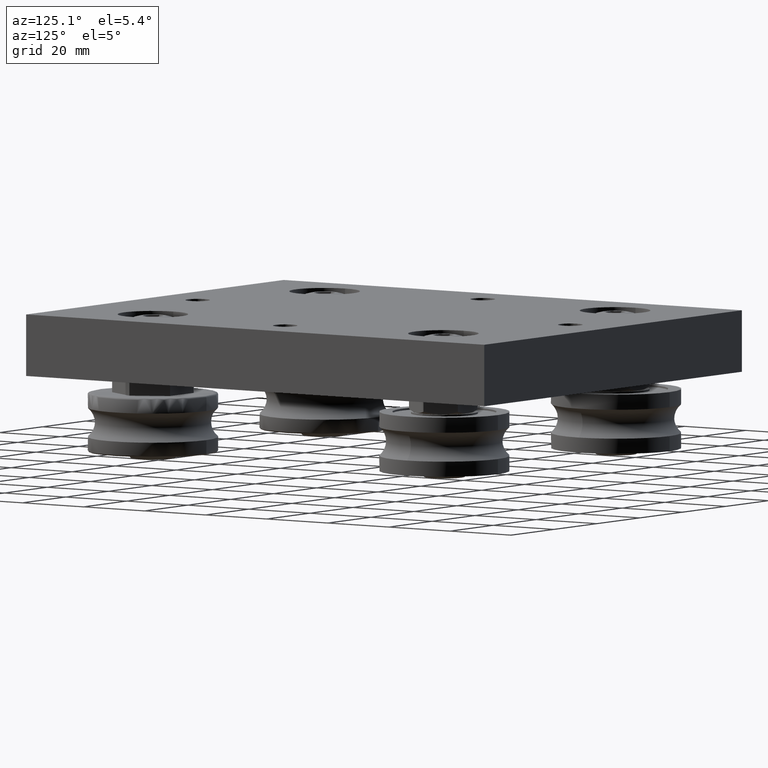
[diagram: clean part render]
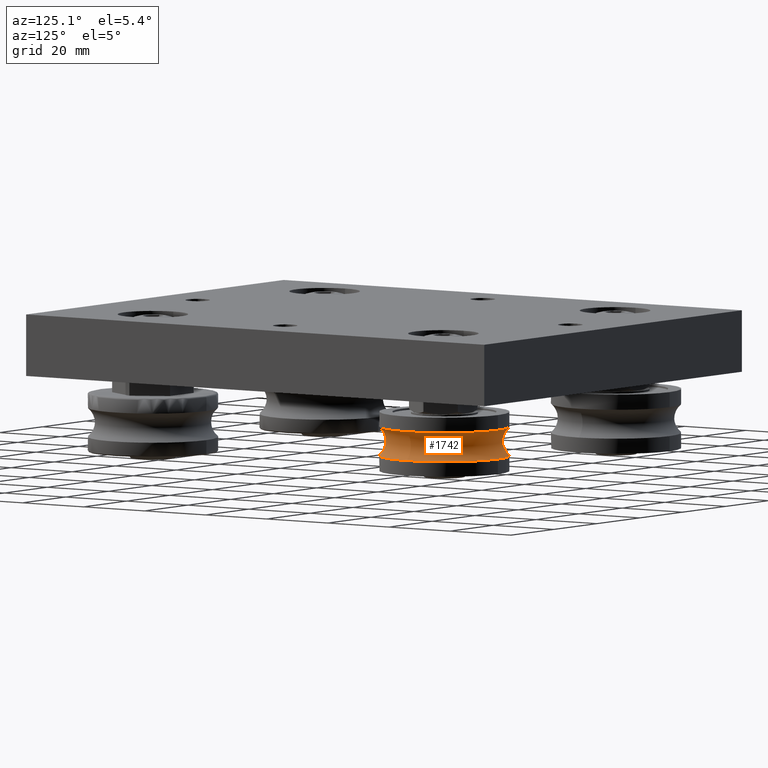
[diagram: same view with one face highlighted and labeled with its STEP entity id]
A machine part, auxiliary view. The second image highlights one B-rep face of the part: STEP entity #1742.
In plain terms, the highlighted toroidal blend (fillet) surface has major radius 20.65 mm and minor (blend) radius 5 mm.
Its self-contained STEP definition (entity closure, byte-faithful):
#103=TOROIDAL_SURFACE('',#1998,20.65,5.);
#280=FACE_OUTER_BOUND('',#417,.T.);
#417=EDGE_LOOP('',(#1326,#1327,#1328,#1329,#1330,#1331));
#741=CIRCLE('',#1996,17.5);
#742=CIRCLE('',#1997,17.5);
#743=CIRCLE('',#1999,5.);
#744=CIRCLE('',#2000,17.5);
#745=CIRCLE('',#2001,17.5);
#865=VERTEX_POINT('',#2892);
#866=VERTEX_POINT('',#2893);
#867=VERTEX_POINT('',#2898);
#868=VERTEX_POINT('',#2900);
#1031=EDGE_CURVE('',#865,#866,#741,.T.);
#1033=EDGE_CURVE('',#866,#865,#742,.T.);
#1034=EDGE_CURVE('',#866,#867,#743,.T.);
#1035=EDGE_CURVE('',#868,#867,#744,.T.);
#1036=EDGE_CURVE('',#867,#868,#745,.T.);
#1326=ORIENTED_EDGE('',*,*,#1031,.T.);
#1327=ORIENTED_EDGE('',*,*,#1034,.T.);
#1328=ORIENTED_EDGE('',*,*,#1035,.F.);
#1329=ORIENTED_EDGE('',*,*,#1036,.F.);
#1330=ORIENTED_EDGE('',*,*,#1034,.F.);
#1331=ORIENTED_EDGE('',*,*,#1033,.T.);
#1742=ADVANCED_FACE('',(#280),#103,.F.);
#1996=AXIS2_PLACEMENT_3D('',#2894,#2329,#2330);
#1997=AXIS2_PLACEMENT_3D('',#2896,#2332,#2333);
#1998=AXIS2_PLACEMENT_3D('',#2897,#2334,#2335);
#1999=AXIS2_PLACEMENT_3D('',#2899,#2336,#2337);
#2000=AXIS2_PLACEMENT_3D('',#2901,#2338,#2339);
#2001=AXIS2_PLACEMENT_3D('',#2902,#2340,#2341);
#2329=DIRECTION('center_axis',(1.,0.,0.));
#2330=DIRECTION('ref_axis',(0.,1.,0.));
#2332=DIRECTION('center_axis',(1.,0.,0.));
#2333=DIRECTION('ref_axis',(0.,1.,0.));
#2334=DIRECTION('center_axis',(1.,0.,0.));
#2335=DIRECTION('ref_axis',(0.,0.,-1.));
#2336=DIRECTION('center_axis',(0.,-1.,-1.22464679914735E-16));
#2337=DIRECTION('ref_axis',(0.,-1.22464679914735E-16,1.));
#2338=DIRECTION('center_axis',(1.,0.,0.));
#2339=DIRECTION('ref_axis',(0.,1.,0.));
#2340=DIRECTION('center_axis',(1.,0.,0.));
#2341=DIRECTION('ref_axis',(0.,1.,0.));
#2892=CARTESIAN_POINT('',(-3.88297566307078,-17.5,-2.14313189850787E-15));
#2893=CARTESIAN_POINT('',(-3.88297566307078,-2.14313189850787E-15,17.5));
#2894=CARTESIAN_POINT('Origin',(-3.88297566307078,0.,0.));
#2896=CARTESIAN_POINT('Origin',(-3.88297566307078,0.,0.));
#2897=CARTESIAN_POINT('Origin',(0.,0.,0.));
#2898=CARTESIAN_POINT('',(3.88297566307078,-2.14313189850787E-15,17.5));
#2899=CARTESIAN_POINT('Origin',(0.,-2.52889564023928E-15,20.65));
#2900=CARTESIAN_POINT('',(3.88297566307078,-17.5,-2.14313189850787E-15));
#2901=CARTESIAN_POINT('Origin',(3.88297566307078,0.,0.));
#2902=CARTESIAN_POINT('Origin',(3.88297566307078,0.,0.));